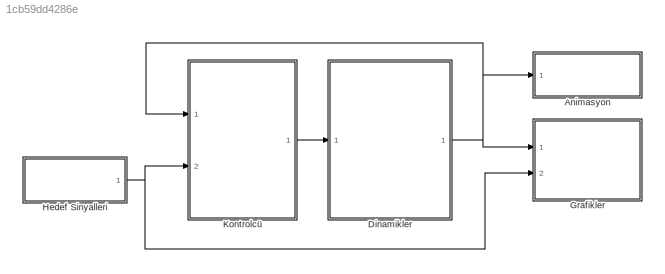
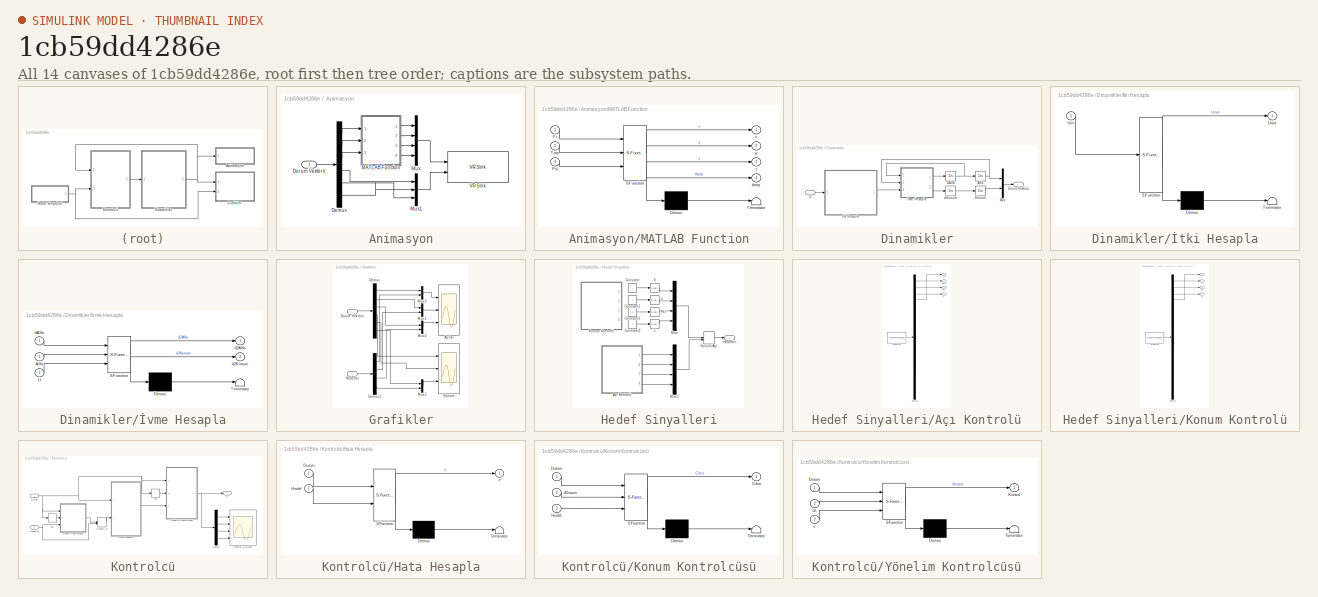
[diagram: thumbnail index - all 14 canvases of the model, root first then tree order]
MODEL slx_1cb59dd4286e
KIND model
BLOCK [SubSystem] Animasyon
  FunctionWithSeparateData = off
  MaskHideContents = off
  MinAlgLoopOccurrences = off
  Opaque = off
  Ports = [1]
  PropExecContextOutsideSubsystem = off
  RTWSystemCode = Auto
  RequestExecContextInheritance = off
BLOCK [Demux] Animasyon/Demux
  DisplayOption = bar
  Outputs = 6
  Ports = [1, 6]
BLOCK [Inport] Animasyon/Durum Vektörü
  IconDisplay = Port number
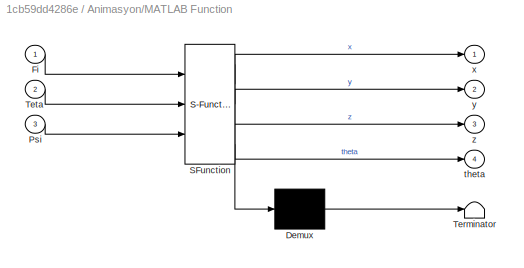
BLOCK [SubSystem] Animasyon/MATLAB Function
  ErrorFcn = Stateflow.Translate.translate
  FunctionWithSeparateData = off
  MaskHideContents = off
  MinAlgLoopOccurrences = off
  Opaque = off
  PermitHierarchicalResolution = ExplicitOnly
  Ports = [3, 4]
  PropExecContextOutsideSubsystem = off
  RTWSystemCode = Auto
  RequestExecContextInheritance = off
  SFBlockType = MATLAB Function
  TreatAsAtomicUnit = on
BLOCK [Demux] Animasyon/MATLAB Function/ Demux 
  Outputs = 1
  Ports = [1, 1]
BLOCK [S-Function] Animasyon/MATLAB Function/ SFunction 
  EnableBusSupport = on
  FunctionName = sf_sfun
  PortCounts = [3 5]
  Ports = [3, 5]
  Tag = Stateflow S-Function quadPD 6
BLOCK [Terminator] Animasyon/MATLAB Function/ Terminator 
BLOCK [Inport] Animasyon/MATLAB Function/Fi
  IconDisplay = Port number
BLOCK [Inport] Animasyon/MATLAB Function/Psi
  IconDisplay = Port number
  Port = 3
BLOCK [Inport] Animasyon/MATLAB Function/Teta
  IconDisplay = Port number
  Port = 2
BLOCK [Outport] Animasyon/MATLAB Function/theta
  IconDisplay = Port number
  Port = 4
BLOCK [Outport] Animasyon/MATLAB Function/x
  IconDisplay = Port number
BLOCK [Outport] Animasyon/MATLAB Function/y
  IconDisplay = Port number
  Port = 2
BLOCK [Outport] Animasyon/MATLAB Function/z
  IconDisplay = Port number
  Port = 3
BLOCK [Mux] Animasyon/Mux
  DisplayOption = bar
  Ports = [4, 1]
BLOCK [Mux] Animasyon/Mux1
  DisplayOption = bar
  Inputs = 3
  Ports = [3, 1]
BLOCK [Reference] Animasyon/VR Sink  REF=vrlib/VR Sink
  AllowVariableSize = off
  AutoView = off
  FieldsWritten = Quadro.rotation.4.1.1.double#Quadro.translation.3.1.1.double
  InstantiateOnLoad = on
  Ports = [2]
  RemoteChange = off
  RemoteView = off
  SampleTime = 0.1
  SourceBlock = vrlib/VR Sink
  SourceType = Virtual Reality Sink
  VideoDimensions = []
  ViewEnable = on
  WorldFileName = quad.wrl
BLOCK [SubSystem] Dinamikler
  FunctionWithSeparateData = off
  MaskHideContents = off
  MinAlgLoopOccurrences = off
  Opaque = off
  Ports = [1, 1]
  PropExecContextOutsideSubsystem = off
  RTWSystemCode = Auto
  RequestExecContextInheritance = off
BLOCK [Integrator] Dinamikler/Alfa
  Ports = [1, 1]
BLOCK [Outport] Dinamikler/Durum Vektörü
  IconDisplay = Port number
BLOCK [Integrator] Dinamikler/Konum
  Ports = [1, 1]
BLOCK [Mux] Dinamikler/Mux
  DisplayOption = bar
  Inputs = 2
  Ports = [2, 1]
BLOCK [Inport] Dinamikler/U
  IconDisplay = Port number
BLOCK [Integrator] Dinamikler/dAlfa
  Ports = [1, 1]
BLOCK [Integrator] Dinamikler/dKonum
  Ports = [1, 1]
BLOCK [SubSystem] Dinamikler/İtki Hesapla
  ErrorFcn = Stateflow.Translate.translate
  FunctionWithSeparateData = off
  MaskHideContents = off
  MinAlgLoopOccurrences = off
  Opaque = off
  PermitHierarchicalResolution = ExplicitOnly
  Ports = [1, 1]
  PropExecContextOutsideSubsystem = off
  RTWSystemCode = Auto
  RequestExecContextInheritance = off
  SFBlockType = MATLAB Function
  TreatAsAtomicUnit = on
BLOCK [Demux] Dinamikler/İtki Hesapla/ Demux 
  Outputs = 1
  Ports = [1, 1]
BLOCK [S-Function] Dinamikler/İtki Hesapla/ SFunction 
  EnableBusSupport = on
  FunctionName = sf_sfun
  PortCounts = [1 2]
  Ports = [1, 2]
  Tag = Stateflow S-Function quadPD 2
BLOCK [Terminator] Dinamikler/İtki Hesapla/ Terminator 
BLOCK [Inport] Dinamikler/İtki Hesapla/Uin
  IconDisplay = Port number
BLOCK [Outport] Dinamikler/İtki Hesapla/Uout
  IconDisplay = Port number
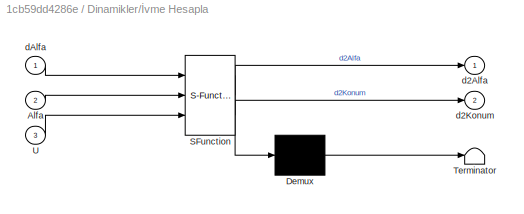
BLOCK [SubSystem] Dinamikler/İvme Hesapla
  ErrorFcn = Stateflow.Translate.translate
  FunctionWithSeparateData = off
  MaskHideContents = off
  MinAlgLoopOccurrences = off
  Opaque = off
  PermitHierarchicalResolution = ExplicitOnly
  Ports = [3, 2]
  PropExecContextOutsideSubsystem = off
  RTWSystemCode = Auto
  RequestExecContextInheritance = off
  SFBlockType = MATLAB Function
  TreatAsAtomicUnit = on
BLOCK [Demux] Dinamikler/İvme Hesapla/ Demux 
  Outputs = 1
  Ports = [1, 1]
BLOCK [S-Function] Dinamikler/İvme Hesapla/ SFunction 
  EnableBusSupport = on
  FunctionName = sf_sfun
  PortCounts = [3 3]
  Ports = [3, 3]
  Tag = Stateflow S-Function quadPD 1
BLOCK [Terminator] Dinamikler/İvme Hesapla/ Terminator 
BLOCK [Inport] Dinamikler/İvme Hesapla/Alfa
  IconDisplay = Port number
  Port = 2
BLOCK [Inport] Dinamikler/İvme Hesapla/U
  IconDisplay = Port number
  Port = 3
BLOCK [Outport] Dinamikler/İvme Hesapla/d2Alfa
  IconDisplay = Port number
BLOCK [Outport] Dinamikler/İvme Hesapla/d2Konum
  IconDisplay = Port number
  Port = 2
BLOCK [Inport] Dinamikler/İvme Hesapla/dAlfa
  IconDisplay = Port number
BLOCK [SubSystem] Grafikler
  FunctionWithSeparateData = off
  MaskHideContents = off
  MinAlgLoopOccurrences = off
  Opaque = off
  Ports = [2]
  PropExecContextOutsideSubsystem = off
  RTWSystemCode = Auto
  RequestExecContextInheritance = off
BLOCK [Scope] Grafikler/Açılar
  DataFormat = StructureWithTime
  Floating = off
  LimitDataPoints = off
  NumInputPorts = 3
  Ports = [3]
  SampleTime = 0
  ShowLegends = off
  YMax = 550~5~5
  YMin = -25~-5~-5
BLOCK [Demux] Grafikler/Demux
  DisplayOption = bar
  Outputs = 6
  Ports = [1, 6]
BLOCK [Demux] Grafikler/Demux1
  DisplayOption = bar
  Ports = [1, 4]
BLOCK [Inport] Grafikler/Durum Vektörü
  IconDisplay = Port number
BLOCK [Inport] Grafikler/Hedefler
  IconDisplay = Port number
  Port = 2
BLOCK [Scope] Grafikler/Konum
  DataFormat = StructureWithTime
  Floating = off
  LimitDataPoints = off
  NumInputPorts = 3
  Ports = [3]
  SampleTime = 0
  SaveName = ScopeData2
  ShowLegends = off
  YMax = 550~5~5
  YMin = -25~-5~-5
BLOCK [Mux] Grafikler/Mux1
  DisplayOption = bar
  Inputs = 2
  Ports = [2, 1]
BLOCK [Mux] Grafikler/Mux2
  DisplayOption = bar
  Inputs = 2
  Ports = [2, 1]
BLOCK [Mux] Grafikler/Mux3
  DisplayOption = bar
  Inputs = 2
  Ports = [2, 1]
BLOCK [Mux] Grafikler/Mux5
  DisplayOption = bar
  Inputs = 2
  Ports = [2, 1]
BLOCK [SubSystem] Hedef Sinyalleri
  FunctionWithSeparateData = off
  MaskHideContents = off
  MinAlgLoopOccurrences = off
  Opaque = off
  Ports = [0, 1]
  PropExecContextOutsideSubsystem = off
  RTWSystemCode = Auto
  RequestExecContextInheritance = off
BLOCK [SubSystem] Hedef Sinyalleri/Açı Kontrolü
  ClipboardFcn = sigbuilder_block('clipboard');
  CloseFcn = sigbuilder_block('close');
  ContinueFcn = sigbuilder_block('continue');
  CopyFcn = sigbuilder_block('copy');
  DeleteFcn = sigbuilder_block('delete');
  FunctionWithSeparateData = off
  LoadFcn = sigbuilder_block('load');
  MaskHideContents = on
  MinAlgLoopOccurrences = off
  ModelCloseFcn = sigbuilder_block('modelClose');
  NameChangeFcn = sigbuilder_block('namechange');
  Opaque = off
  OpenFcn = sigbuilder_block('open',[6 28.5 1012.5 484.5 ]);
  PauseFcn = sigbuilder_block('pause');
  Ports = [0, 4]
  PreSaveFcn = sigbuilder_block('preSave');
  PropExecContextOutsideSubsystem = off
  RTWSystemCode = Auto
  RequestExecContextInheritance = off
  StartFcn = sigbuilder_block('start');
  StopFcn = sigbuilder_block('stop');
  Tag = STV Subsys
BLOCK [Demux] Hedef Sinyalleri/Açı Kontrolü/Demux
  Ports = [1, 4]
  Tag = STV Demux
BLOCK [Outport] Hedef Sinyalleri/Açı Kontrolü/Fi
  IconDisplay = Port number
  Tag = STV Outport
BLOCK [FromWorkspace] Hedef Sinyalleri/Açı Kontrolü/FromWs
  SampleTime = 0
  Tag = STV FromWs
  VariableName = tuvar
  ZeroCross = on
BLOCK [Outport] Hedef Sinyalleri/Açı Kontrolü/Psi
  IconDisplay = Port number
  Port = 3
  Tag = STV Outport
BLOCK [Outport] Hedef Sinyalleri/Açı Kontrolü/Teta
  IconDisplay = Port number
  Port = 2
  Tag = STV Outport
BLOCK [Outport] Hedef Sinyalleri/Açı Kontrolü/Z
  IconDisplay = Port number
  Port = 4
  Tag = STV Outport
BLOCK [Constant] Hedef Sinyalleri/Constant
BLOCK [Constant] Hedef Sinyalleri/Constant1
BLOCK [Constant] Hedef Sinyalleri/Constant2
BLOCK [Constant] Hedef Sinyalleri/Constant3
BLOCK [Outport] Hedef Sinyalleri/Hedefler
  IconDisplay = Port number
BLOCK [SubSystem] Hedef Sinyalleri/Konum Kontrolü
  ClipboardFcn = sigbuilder_block('clipboard');
  CloseFcn = sigbuilder_block('close');
  ContinueFcn = sigbuilder_block('continue');
  CopyFcn = sigbuilder_block('copy');
  DeleteFcn = sigbuilder_block('delete');
  FunctionWithSeparateData = off
  LoadFcn = sigbuilder_block('load');
  MaskHideContents = on
  MinAlgLoopOccurrences = off
  ModelCloseFcn = sigbuilder_block('modelClose');
  NameChangeFcn = sigbuilder_block('namechange');
  Opaque = off
  OpenFcn = sigbuilder_block('open',[6 28.5 1012.5 484.5 ]);
  PauseFcn = sigbuilder_block('pause');
  Ports = [0, 4]
  PreSaveFcn = sigbuilder_block('preSave');
  PropExecContextOutsideSubsystem = off
  RTWSystemCode = Auto
  RequestExecContextInheritance = off
  StartFcn = sigbuilder_block('start');
  StopFcn = sigbuilder_block('stop');
  Tag = STV Subsys
BLOCK [Demux] Hedef Sinyalleri/Konum Kontrolü/Demux
  Ports = [1, 4]
  Tag = STV Demux
BLOCK [FromWorkspace] Hedef Sinyalleri/Konum Kontrolü/FromWs
  SampleTime = 0
  Tag = STV FromWs
  VariableName = tuvar
  ZeroCross = on
BLOCK [Outport] Hedef Sinyalleri/Konum Kontrolü/Psi
  IconDisplay = Port number
  Port = 3
  Tag = STV Outport
BLOCK [Outport] Hedef Sinyalleri/Konum Kontrolü/X
  IconDisplay = Port number
  Tag = STV Outport
BLOCK [Outport] Hedef Sinyalleri/Konum Kontrolü/Y
  IconDisplay = Port number
  Port = 2
  Tag = STV Outport
BLOCK [Outport] Hedef Sinyalleri/Konum Kontrolü/Z
  IconDisplay = Port number
  Port = 4
  Tag = STV Outport
BLOCK [ManualSwitch] Hedef Sinyalleri/Konum//Açı
BLOCK [Mux] Hedef Sinyalleri/Mux
  DisplayOption = bar
  Ports = [4, 1]
BLOCK [Mux] Hedef Sinyalleri/Mux1
  DisplayOption = bar
  Ports = [4, 1]
BLOCK [Reference] Hedef Sinyalleri/Psi  REF=simulink/Math
Operations/Slider
Gain
  Ports = [1, 1]
  SourceBlock = simulink/Math\nOperations/Slider\nGain
  SourceType = Slider Gain
  gain = 0
  high = 2
  low = 0
BLOCK [Reference] Hedef Sinyalleri/X  REF=simulink/Math
Operations/Slider
Gain
  Ports = [1, 1]
  SourceBlock = simulink/Math\nOperations/Slider\nGain
  SourceType = Slider Gain
  gain = 0
  high = 5
  low = -5
BLOCK [Reference] Hedef Sinyalleri/Y  REF=simulink/Math
Operations/Slider
Gain
  Ports = [1, 1]
  SourceBlock = simulink/Math\nOperations/Slider\nGain
  SourceType = Slider Gain
  gain = 0
  high = 5
  low = -5
BLOCK [Reference] Hedef Sinyalleri/Z  REF=simulink/Math
Operations/Slider
Gain
  Ports = [1, 1]
  SourceBlock = simulink/Math\nOperations/Slider\nGain
  SourceType = Slider Gain
  gain = 0
  high = 10
  low = 0
BLOCK [SubSystem] Kontrolcü
  FunctionWithSeparateData = off
  MaskHideContents = off
  MinAlgLoopOccurrences = off
  Opaque = off
  Ports = [2, 1]
  PropExecContextOutsideSubsystem = off
  RTWSystemCode = Auto
  RequestExecContextInheritance = off
BLOCK [Demux] Kontrolcü/Demux
  DisplayOption = bar
  Ports = [1, 4]
BLOCK [Inport] Kontrolcü/Durum
  IconDisplay = Port number
BLOCK [SubSystem] Kontrolcü/Hata Hesapla
  ErrorFcn = Stateflow.Translate.translate
  FunctionWithSeparateData = off
  MaskHideContents = off
  MinAlgLoopOccurrences = off
  Opaque = off
  PermitHierarchicalResolution = ExplicitOnly
  Ports = [2, 1]
  PropExecContextOutsideSubsystem = off
  RTWSystemCode = Auto
  RequestExecContextInheritance = off
  SFBlockType = MATLAB Function
  TreatAsAtomicUnit = on
BLOCK [Demux] Kontrolcü/Hata Hesapla/ Demux 
  Outputs = 1
  Ports = [1, 1]
BLOCK [S-Function] Kontrolcü/Hata Hesapla/ SFunction 
  EnableBusSupport = on
  FunctionName = sf_sfun
  PortCounts = [2 2]
  Ports = [2, 2]
  Tag = Stateflow S-Function quadPD 3
BLOCK [Terminator] Kontrolcü/Hata Hesapla/ Terminator 
BLOCK [Inport] Kontrolcü/Hata Hesapla/Durum
  IconDisplay = Port number
BLOCK [Inport] Kontrolcü/Hata Hesapla/Hedef
  IconDisplay = Port number
  Port = 2
BLOCK [Outport] Kontrolcü/Hata Hesapla/e
  IconDisplay = Port number
BLOCK [Inport] Kontrolcü/Hedefler
  IconDisplay = Port number
  Port = 2
BLOCK [Scope] Kontrolcü/Kontrol Çıkışları
  DataFormat = StructureWithTime
  Floating = off
  NumInputPorts = 4
  Ports = [4]
  SampleTime = 0
  SaveName = ScopeData1
  ShowLegends = off
  TimeRange = 0.1500000000000004
  YMax = 10000000~-154~-180000~1440
  YMin = -5000000~-160~-195000~1390
BLOCK [SubSystem] Kontrolcü/Konum Kontrolcüsü
  ErrorFcn = Stateflow.Translate.translate
  FunctionWithSeparateData = off
  MaskHideContents = off
  MinAlgLoopOccurrences = off
  Opaque = off
  PermitHierarchicalResolution = ExplicitOnly
  Ports = [3, 1]
  PropExecContextOutsideSubsystem = off
  RTWSystemCode = Auto
  RequestExecContextInheritance = off
  SFBlockType = MATLAB Function
  TreatAsAtomicUnit = on
BLOCK [Demux] Kontrolcü/Konum Kontrolcüsü/ Demux 
  Outputs = 1
  Ports = [1, 1]
BLOCK [S-Function] Kontrolcü/Konum Kontrolcüsü/ SFunction 
  EnableBusSupport = on
  FunctionName = sf_sfun
  PortCounts = [3 2]
  Ports = [3, 2]
  Tag = Stateflow S-Function quadPD 5
BLOCK [Terminator] Kontrolcü/Konum Kontrolcüsü/ Terminator 
BLOCK [Outport] Kontrolcü/Konum Kontrolcüsü/Cikis
  IconDisplay = Port number
BLOCK [Inport] Kontrolcü/Konum Kontrolcüsü/Durum
  IconDisplay = Port number
BLOCK [Inport] Kontrolcü/Konum Kontrolcüsü/Hedef
  IconDisplay = Port number
  Port = 3
BLOCK [Inport] Kontrolcü/Konum Kontrolcüsü/dDurum
  IconDisplay = Port number
  Port = 2
BLOCK [ManualSwitch] Kontrolcü/Konum//Açı
BLOCK [Outport] Kontrolcü/U
  IconDisplay = Port number
BLOCK [SubSystem] Kontrolcü/Yönelim Kontrolcüsü
  ErrorFcn = Stateflow.Translate.translate
  FunctionWithSeparateData = off
  MaskHideContents = off
  MinAlgLoopOccurrences = off
  Opaque = off
  PermitHierarchicalResolution = ExplicitOnly
  Ports = [3, 1]
  PropExecContextOutsideSubsystem = off
  RTWSystemCode = Auto
  RequestExecContextInheritance = off
  SFBlockType = MATLAB Function
  TreatAsAtomicUnit = on
BLOCK [Demux] Kontrolcü/Yönelim Kontrolcüsü/ Demux 
  Outputs = 1
  Ports = [1, 1]
BLOCK [S-Function] Kontrolcü/Yönelim Kontrolcüsü/ SFunction 
  EnableBusSupport = on
  FunctionName = sf_sfun
  PortCounts = [3 2]
  Ports = [3, 2]
  Tag = Stateflow S-Function quadPD 4
BLOCK [Terminator] Kontrolcü/Yönelim Kontrolcüsü/ Terminator 
BLOCK [Inport] Kontrolcü/Yönelim Kontrolcüsü/Durum
  IconDisplay = Port number
BLOCK [Outport] Kontrolcü/Yönelim Kontrolcüsü/Kontrol
  IconDisplay = Port number
BLOCK [Inport] Kontrolcü/Yönelim Kontrolcüsü/de
  IconDisplay = Port number
  Port = 2
BLOCK [Inport] Kontrolcü/Yönelim Kontrolcüsü/e
  IconDisplay = Port number
  Port = 3
BLOCK [Derivative] Kontrolcü/de
BLOCK [Derivative] Kontrolcü/de1
LINE Animasyon/Demux:1 -> Animasyon/MATLAB Function:1
LINE Animasyon/Demux:2 -> Animasyon/MATLAB Function:2
LINE Animasyon/Demux:3 -> Animasyon/MATLAB Function:3
LINE Animasyon/Demux:4 -> Animasyon/Mux1:1
LINE Animasyon/Demux:5 -> Animasyon/Mux1:3
LINE Animasyon/Demux:6 -> Animasyon/Mux1:2
LINE Animasyon/Durum Vektörü:1 -> Animasyon/Demux:1
LINE Animasyon/MATLAB Function:1 -> Animasyon/Mux:1
LINE Animasyon/MATLAB Function:2 -> Animasyon/Mux:2
LINE Animasyon/MATLAB Function:3 -> Animasyon/Mux:3
LINE Animasyon/MATLAB Function:4 -> Animasyon/Mux:4
LINE Animasyon/Mux1:1 -> Animasyon/VR Sink:2
LINE Animasyon/Mux:1 -> Animasyon/VR Sink:1
NET Dinamikler/Alfa:1 -> Dinamikler/Mux:1, Dinamikler/İvme Hesapla:2
LINE Dinamikler/Konum:1 -> Dinamikler/Mux:2
LINE Dinamikler/Mux:1 -> Dinamikler/Durum Vektörü:1
LINE Dinamikler/U:1 -> Dinamikler/İtki Hesapla:1
NET Dinamikler/dAlfa:1 -> Dinamikler/Alfa:1, Dinamikler/İvme Hesapla:1
LINE Dinamikler/dKonum:1 -> Dinamikler/Konum:1
LINE Dinamikler/İtki Hesapla:1 -> Dinamikler/İvme Hesapla:3
LINE Dinamikler/İvme Hesapla:1 -> Dinamikler/dAlfa:1
LINE Dinamikler/İvme Hesapla:2 -> Dinamikler/dKonum:1
NET Dinamikler:1 -> Animasyon:1, Grafikler:1, Kontrolcü:1
LINE Grafikler/Demux1:1 -> Grafikler/Mux3:2
LINE Grafikler/Demux1:2 -> Grafikler/Mux1:2
LINE Grafikler/Demux1:3 -> Grafikler/Mux2:2
LINE Grafikler/Demux1:4 -> Grafikler/Mux5:2
LINE Grafikler/Demux:1 -> Grafikler/Mux3:1
LINE Grafikler/Demux:2 -> Grafikler/Mux1:1
LINE Grafikler/Demux:3 -> Grafikler/Mux2:1
LINE Grafikler/Demux:4 -> Grafikler/Konum:1
LINE Grafikler/Demux:5 -> Grafikler/Konum:2
LINE Grafikler/Demux:6 -> Grafikler/Mux5:1
LINE Grafikler/Durum Vektörü:1 -> Grafikler/Demux:1
LINE Grafikler/Hedefler:1 -> Grafikler/Demux1:1
LINE Grafikler/Mux1:1 -> Grafikler/Açılar:2
LINE Grafikler/Mux2:1 -> Grafikler/Açılar:3
LINE Grafikler/Mux3:1 -> Grafikler/Açılar:1
LINE Grafikler/Mux5:1 -> Grafikler/Konum:3
LINE Hedef Sinyalleri/Açı Kontrolü:1 -> Hedef Sinyalleri/Mux1:1
LINE Hedef Sinyalleri/Açı Kontrolü:2 -> Hedef Sinyalleri/Mux1:2
LINE Hedef Sinyalleri/Açı Kontrolü:3 -> Hedef Sinyalleri/Mux1:3
LINE Hedef Sinyalleri/Açı Kontrolü:4 -> Hedef Sinyalleri/Mux1:4
LINE Hedef Sinyalleri/Constant1:1 -> Hedef Sinyalleri/Y:1
LINE Hedef Sinyalleri/Constant2:1 -> Hedef Sinyalleri/Psi:1
LINE Hedef Sinyalleri/Constant3:1 -> Hedef Sinyalleri/Z:1
LINE Hedef Sinyalleri/Constant:1 -> Hedef Sinyalleri/X:1
LINE Hedef Sinyalleri/Konum//Açı:1 -> Hedef Sinyalleri/Hedefler:1
LINE Hedef Sinyalleri/Mux1:1 -> Hedef Sinyalleri/Konum//Açı:2
LINE Hedef Sinyalleri/Mux:1 -> Hedef Sinyalleri/Konum//Açı:1
LINE Hedef Sinyalleri/Psi:1 -> Hedef Sinyalleri/Mux:3
LINE Hedef Sinyalleri/X:1 -> Hedef Sinyalleri/Mux:1
LINE Hedef Sinyalleri/Y:1 -> Hedef Sinyalleri/Mux:2
LINE Hedef Sinyalleri/Z:1 -> Hedef Sinyalleri/Mux:4
NET Hedef Sinyalleri:1 -> Grafikler:2, Kontrolcü:2
LINE Kontrolcü/Demux:1 -> Kontrolcü/Kontrol Çıkışları:1
LINE Kontrolcü/Demux:2 -> Kontrolcü/Kontrol Çıkışları:2
LINE Kontrolcü/Demux:3 -> Kontrolcü/Kontrol Çıkışları:3
LINE Kontrolcü/Demux:4 -> Kontrolcü/Kontrol Çıkışları:4
NET Kontrolcü/Durum:1 -> Kontrolcü/Hata Hesapla:1, Kontrolcü/Konum Kontrolcüsü:1, Kontrolcü/Yönelim Kontrolcüsü:1, Kontrolcü/de1:1, Kontrolcü/de:1
LINE Kontrolcü/Hata Hesapla:1 -> Kontrolcü/Yönelim Kontrolcüsü:3
NET Kontrolcü/Hedefler:1 -> Kontrolcü/Konum Kontrolcüsü:3, Kontrolcü/Konum//Açı:2
LINE Kontrolcü/Konum Kontrolcüsü:1 -> Kontrolcü/Konum//Açı:1
LINE Kontrolcü/Konum//Açı:1 -> Kontrolcü/Hata Hesapla:2
NET Kontrolcü/Yönelim Kontrolcüsü:1 -> Kontrolcü/Demux:1, Kontrolcü/U:1
LINE Kontrolcü/de1:1 -> Kontrolcü/Konum Kontrolcüsü:2
LINE Kontrolcü/de:1 -> Kontrolcü/Yönelim Kontrolcüsü:2
LINE Kontrolcü:1 -> Dinamikler:1
note: NET lines group one-source signal fan-out (src -> all destinations, sorted); 1:1 wires keep LINE
